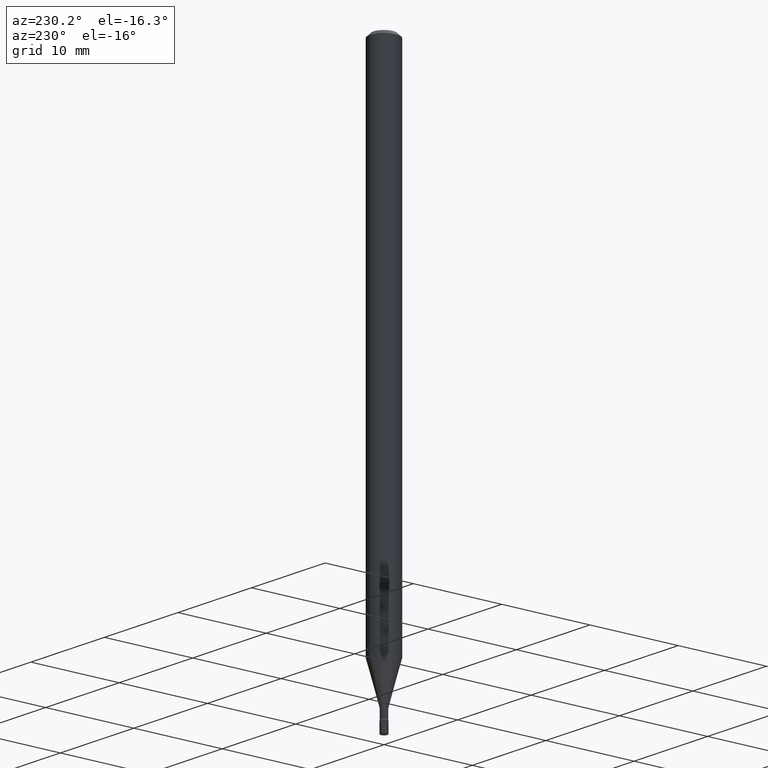
[diagram: clean part render]
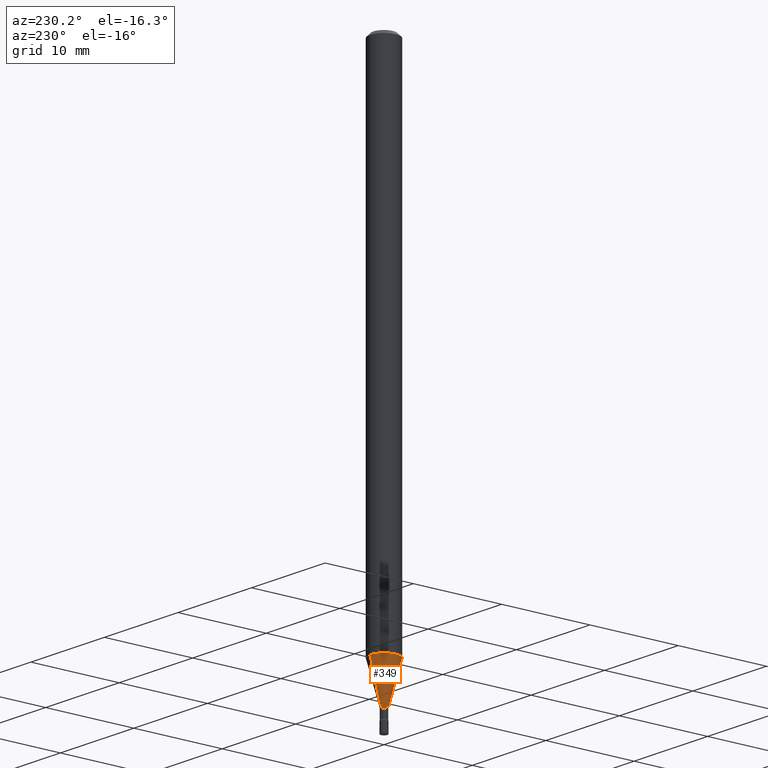
[diagram: same view with one face highlighted and labeled with its STEP entity id]
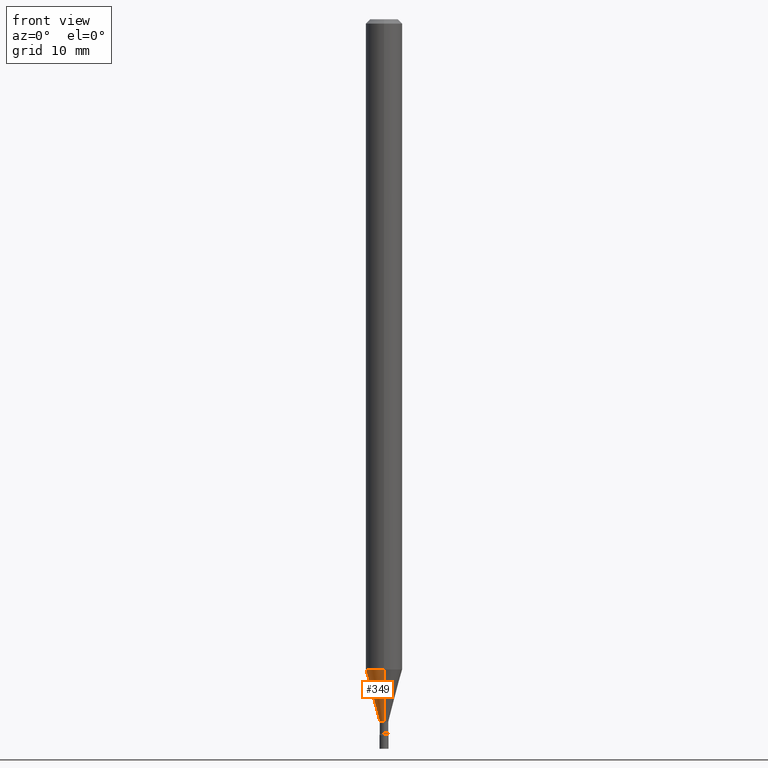
[diagram: same view with one face highlighted and labeled with its STEP entity id]
A machine part, auxiliary view. The second image highlights one B-rep face of the part: STEP entity #349.
A second angle (front view) of the same face is appended — the face is thin or edge-on in the first view.
In plain terms, the highlighted conical surface has half-angle 15 deg.
Its self-contained STEP definition (entity closure, byte-faithful):
#10 = LINE ( 'NONE', #487, #150 ) ;
#23 = VERTEX_POINT ( 'NONE', #157 ) ;
#26 = CONICAL_SURFACE ( 'NONE', #318, 0.01506111260566398227, 0.2617993877991499074 ) ;
#28 = VERTEX_POINT ( 'NONE', #408 ) ;
#29 = CARTESIAN_POINT ( 'NONE',  ( -1.051711872097229259E-16, -0.01506111260567238180, -2.405092501787273296 ) ) ;
#30 = ORIENTED_EDGE ( 'NONE', *, *, #519, .F. ) ;
#57 = VECTOR ( 'NONE', #360, 39.37007874015748143 ) ;
#61 = ORIENTED_EDGE ( 'NONE', *, *, #287, .T. ) ;
#65 = VERTEX_POINT ( 'NONE', #518 ) ;
#71 = AXIS2_PLACEMENT_3D ( 'NONE', #453, #283, #486 ) ;
#128 = CARTESIAN_POINT ( 'NONE',  ( 5.448635687293979942E-29, -7.779169390438593115E-15, -2.228048163777072599 ) ) ;
#150 = VECTOR ( 'NONE', #490, 39.37007874015748854 ) ;
#157 = CARTESIAN_POINT ( 'NONE',  ( 4.440892098501168504E-16, 0.06249999999999221456, -2.228048163777073043 ) ) ;
#206 = EDGE_LOOP ( 'NONE', ( #251, #217, #61, #30 ) ) ;
#217 = ORIENTED_EDGE ( 'NONE', *, *, #433, .T. ) ;
#237 = LINE ( 'NONE', #29, #57 ) ;
#250 = CIRCLE ( 'NONE', #320, 0.06250000000000000000 ) ;
#251 = ORIENTED_EDGE ( 'NONE', *, *, #503, .F. ) ;
#283 = DIRECTION ( 'NONE',  ( -2.445474822257542446E-29, 3.491472723485046881E-15, 1.000000000000000000 ) ) ;
#285 = CIRCLE ( 'NONE', #71, 0.01506111260566398227 ) ;
#287 = EDGE_CURVE ( 'NONE', #65, #28, #237, .T. ) ;
#318 = AXIS2_PLACEMENT_3D ( 'NONE', #357, #515, #401 ) ;
#320 = AXIS2_PLACEMENT_3D ( 'NONE', #128, #452, #322 ) ;
#322 = DIRECTION ( 'NONE',  ( -6.982962677686265922E-15, -1.000000000000000000, 4.370956789862821150E-15 ) ) ;
#349 = ADVANCED_FACE ( 'NONE', ( #440 ), #26, .T. ) ;
#357 = CARTESIAN_POINT ( 'NONE',  ( 5.881593158321180311E-29, -8.397314867448675411E-15, -2.405092501787273296 ) ) ;
#360 = DIRECTION ( 'NONE',  ( -1.807323732225327773E-15, -0.2588190451025178529, 0.9659258262890690894 ) ) ;
#373 = CARTESIAN_POINT ( 'NONE',  ( 2.755524256971851785E-16, 0.01506111260565558621, -2.405092501787273296 ) ) ;
#401 = DIRECTION ( 'NONE',  ( -6.982962677686266711E-15, -1.000000000000000000, 0.000000000000000000 ) ) ;
#408 = CARTESIAN_POINT ( 'NONE',  ( -4.364351673553372873E-16, -0.06250000000000779932, -2.228048163777072599 ) ) ;
#433 = EDGE_CURVE ( 'NONE', #463, #65, #285, .T. ) ;
#440 = FACE_OUTER_BOUND ( 'NONE', #206, .T. ) ;
#452 = DIRECTION ( 'NONE',  ( -2.445474822257542446E-29, 3.491472723485046881E-15, 1.000000000000000000 ) ) ;
#453 = CARTESIAN_POINT ( 'NONE',  ( 5.881593158321180311E-29, -8.397314867448675411E-15, -2.405092501787273296 ) ) ;
#463 = VERTEX_POINT ( 'NONE', #373 ) ;
#486 = DIRECTION ( 'NONE',  ( -6.982962677686266711E-15, -1.000000000000000000, 0.000000000000000000 ) ) ;
#487 = CARTESIAN_POINT ( 'NONE',  ( 1.070156415442529642E-16, 0.01506111260565558448, -2.405092501787273296 ) ) ;
#490 = DIRECTION ( 'NONE',  ( 1.839019923739597554E-15, 0.2588190451025245697, 0.9659258262890670910 ) ) ;
#503 = EDGE_CURVE ( 'NONE', #463, #23, #10, .T. ) ;
#515 = DIRECTION ( 'NONE',  ( -2.445474822257542446E-29, 3.491472723485046881E-15, 1.000000000000000000 ) ) ;
#518 = CARTESIAN_POINT ( 'NONE',  ( -1.051711872097229259E-16, -0.01506111260567238180, -2.405092501787273296 ) ) ;
#519 = EDGE_CURVE ( 'NONE', #23, #28, #250, .T. ) ;